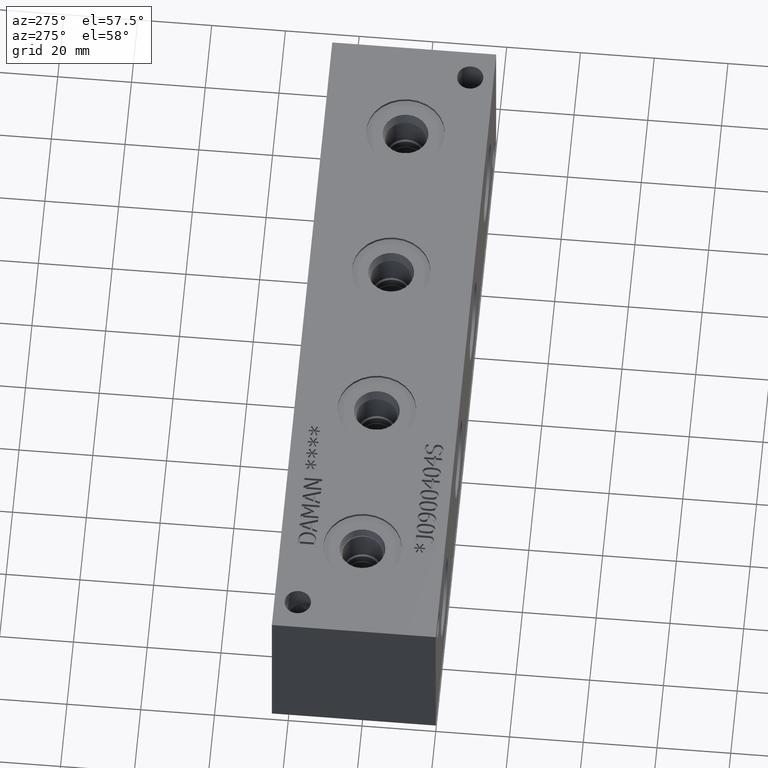
[diagram: clean part render]
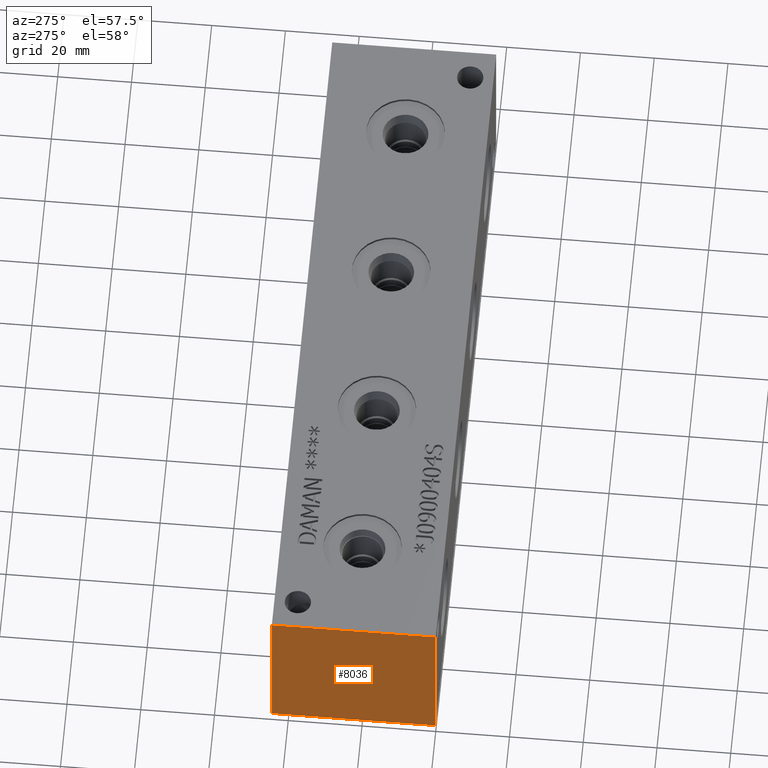
[diagram: same view with one face highlighted and labeled with its STEP entity id]
A machine part, auxiliary view. The second image highlights one B-rep face of the part: STEP entity #8036.
In plain terms, the highlighted planar face has unit normal (-1, 0, 0).
Its self-contained STEP definition (entity closure, byte-faithful):
#1043=FACE_OUTER_BOUND('',#1508,.T.);
#1508=EDGE_LOOP('',(#7058,#7059,#7060,#7061));
#1792=LINE('',#12339,#2531);
#2255=LINE('',#13827,#2994);
#2256=LINE('',#13828,#2995);
#2257=LINE('',#13829,#2996);
#2531=VECTOR('',#8965,10.);
#2994=VECTOR('',#10276,10.);
#2995=VECTOR('',#10277,10.);
#2996=VECTOR('',#10278,10.);
#3296=VERTEX_POINT('',#12332);
#3299=VERTEX_POINT('',#12337);
#3739=VERTEX_POINT('',#13825);
#3740=VERTEX_POINT('',#13826);
#4187=EDGE_CURVE('',#3299,#3296,#1792,.T.);
#4853=EDGE_CURVE('',#3739,#3740,#2255,.T.);
#4854=EDGE_CURVE('',#3740,#3296,#2256,.T.);
#4855=EDGE_CURVE('',#3739,#3299,#2257,.T.);
#7058=ORIENTED_EDGE('',*,*,#4853,.T.);
#7059=ORIENTED_EDGE('',*,*,#4854,.T.);
#7060=ORIENTED_EDGE('',*,*,#4187,.F.);
#7061=ORIENTED_EDGE('',*,*,#4855,.F.);
#7324=PLANE('',#8549);
#8036=ADVANCED_FACE('',(#1043),#7324,.T.);
#8549=AXIS2_PLACEMENT_3D('',#13824,#10274,#10275);
#8965=DIRECTION('',(0.,-1.,0.));
#10274=DIRECTION('center_axis',(-1.,0.,0.));
#10275=DIRECTION('ref_axis',(0.,-1.,0.));
#10276=DIRECTION('',(0.,-1.,0.));
#10277=DIRECTION('',(0.,0.,1.));
#10278=DIRECTION('',(0.,0.,1.));
#12332=CARTESIAN_POINT('',(0.,0.,44.45));
#12337=CARTESIAN_POINT('',(0.,44.45,44.45));
#12339=CARTESIAN_POINT('',(0.,44.45,44.45));
#13824=CARTESIAN_POINT('Origin',(0.,44.45,0.));
#13825=CARTESIAN_POINT('',(0.,44.45,0.));
#13826=CARTESIAN_POINT('',(0.,0.,0.));
#13827=CARTESIAN_POINT('',(0.,44.45,0.));
#13828=CARTESIAN_POINT('',(0.,0.,0.));
#13829=CARTESIAN_POINT('',(0.,44.45,0.));